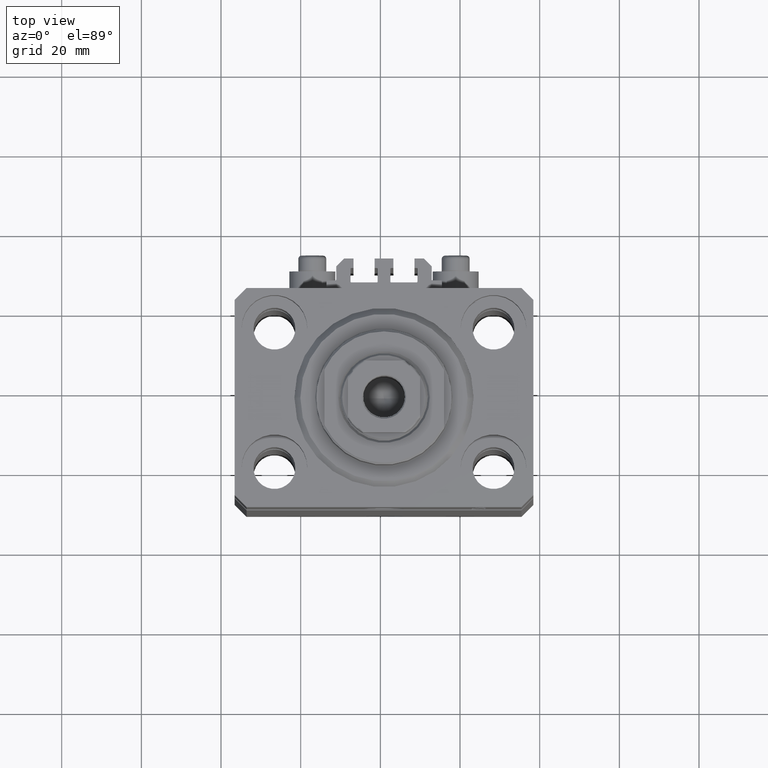
[diagram: clean part render]
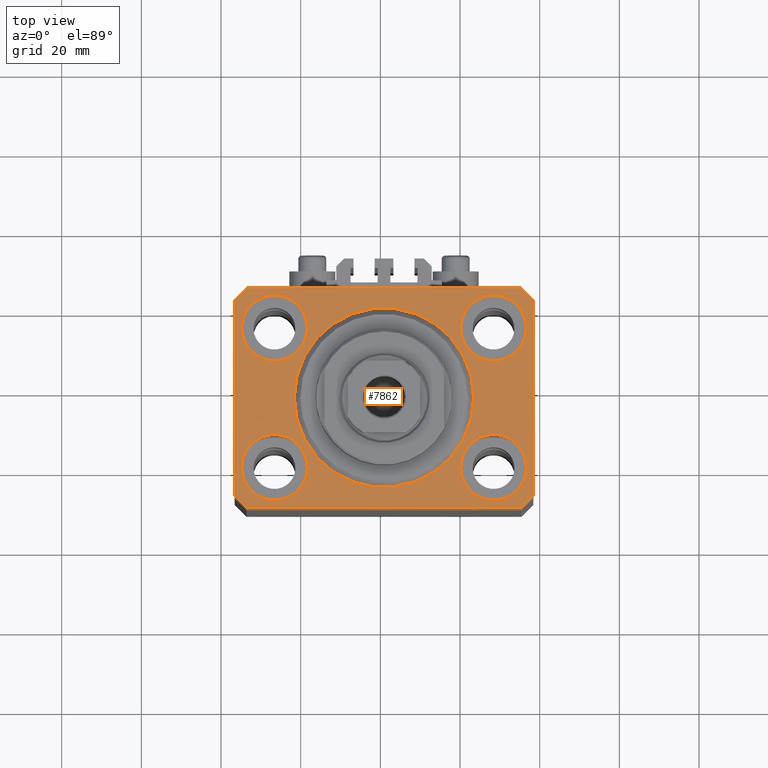
[diagram: same view with one face highlighted and labeled with its STEP entity id]
A machine part, top view. The second image highlights one B-rep face of the part: STEP entity #7862.
In plain terms, the highlighted planar face has unit normal (0, 0, 1).
Its self-contained STEP definition (entity closure, byte-faithful):
#115 = CARTESIAN_POINT ( 'NONE',  ( 27.49999999999999645, 17.50000000000001066, 0.000000000000000000 ) ) ;
#203 = VECTOR ( 'NONE', #7647, 1000.000000000000000 ) ;
#551 = PLANE ( 'NONE',  #45839 ) ;
#976 = EDGE_CURVE ( 'NONE', #36714, #23413, #38731, .T. ) ;
#1295 = VECTOR ( 'NONE', #18978, 1000.000000000000114 ) ;
#1832 = DIRECTION ( 'NONE',  ( 0.000000000000000000, 0.000000000000000000, 1.000000000000000000 ) ) ;
#2538 = CIRCLE ( 'NONE', #34297, 8.250000000000000000 ) ;
#2849 = AXIS2_PLACEMENT_3D ( 'NONE', #35001, #34774, #20570 ) ;
#3582 = VECTOR ( 'NONE', #10931, 1000.000000000000000 ) ;
#3684 = CARTESIAN_POINT ( 'NONE',  ( -35.75000000000000711, -17.50000000000000000, 0.000000000000000000 ) ) ;
#4534 = LINE ( 'NONE', #44527, #1295 ) ;
#4682 = DIRECTION ( 'NONE',  ( 1.000000000000000000, 0.000000000000000000, 0.000000000000000000 ) ) ;
#5132 = EDGE_CURVE ( 'NONE', #37843, #25739, #17060, .T. ) ;
#5859 = ORIENTED_EDGE ( 'NONE', *, *, #5132, .F. ) ;
#5908 = EDGE_CURVE ( 'NONE', #45989, #24899, #42020, .T. ) ;
#6667 = VECTOR ( 'NONE', #45756, 1000.000000000000114 ) ;
#6879 = CARTESIAN_POINT ( 'NONE',  ( 37.49999999999999289, -24.50000000000000000, 0.000000000000000000 ) ) ;
#6985 = DIRECTION ( 'NONE',  ( 0.000000000000000000, -1.000000000000000000, 0.000000000000000000 ) ) ;
#7214 = EDGE_CURVE ( 'NONE', #12616, #45944, #30733, .T. ) ;
#7410 = ORIENTED_EDGE ( 'NONE', *, *, #25615, .T. ) ;
#7599 = CIRCLE ( 'NONE', #16746, 8.250000000000000000 ) ;
#7647 = DIRECTION ( 'NONE',  ( 0.7071067811865483499, -0.7071067811865466846, 0.000000000000000000 ) ) ;
#7862 = ADVANCED_FACE ( 'NONE', ( #46735, #10973, #43171, #11440, #36544, #32968 ), #551, .T. ) ;
#8225 = CARTESIAN_POINT ( 'NONE',  ( -27.50000000000000355, -17.50000000000000000, 0.000000000000000000 ) ) ;
#8698 = VERTEX_POINT ( 'NONE', #41383 ) ;
#10266 = DIRECTION ( 'NONE',  ( 0.000000000000000000, 0.000000000000000000, 1.000000000000000000 ) ) ;
#10310 = CARTESIAN_POINT ( 'NONE',  ( -37.49999999999999289, 24.50000000000000000, 0.000000000000000000 ) ) ;
#10620 = CARTESIAN_POINT ( 'NONE',  ( -34.49999999999998579, -27.49999999999999645, 0.000000000000000000 ) ) ;
#10901 = ORIENTED_EDGE ( 'NONE', *, *, #29933, .F. ) ;
#10931 = DIRECTION ( 'NONE',  ( -1.000000000000000000, 0.000000000000000000, 0.000000000000000000 ) ) ;
#10973 = FACE_BOUND ( 'NONE', #12757, .T. ) ;
#11279 = EDGE_LOOP ( 'NONE', ( #5859, #15117 ) ) ;
#11373 = DIRECTION ( 'NONE',  ( 1.000000000000000000, 0.000000000000000000, 0.000000000000000000 ) ) ;
#11440 = FACE_BOUND ( 'NONE', #11279, .T. ) ;
#12042 = CARTESIAN_POINT ( 'NONE',  ( -27.50000000000000355, 17.50000000000000000, 0.000000000000000000 ) ) ;
#12376 = EDGE_CURVE ( 'NONE', #19516, #26536, #4534, .T. ) ;
#12616 = VERTEX_POINT ( 'NONE', #29809 ) ;
#12728 = CARTESIAN_POINT ( 'NONE',  ( -22.50000000000000355, 2.755455298081544383E-15, 0.000000000000000000 ) ) ;
#12757 = EDGE_LOOP ( 'NONE', ( #39554, #36873 ) ) ;
#12869 = CARTESIAN_POINT ( 'NONE',  ( 37.50000000000051870, 24.49999999999995381, 0.000000000000000000 ) ) ;
#12911 = EDGE_CURVE ( 'NONE', #8698, #36714, #18567, .T. ) ;
#13137 = VECTOR ( 'NONE', #6985, 1000.000000000000000 ) ;
#13431 = AXIS2_PLACEMENT_3D ( 'NONE', #36748, #33649, #33883 ) ;
#14270 = EDGE_CURVE ( 'NONE', #36044, #23907, #23266, .T. ) ;
#14302 = CARTESIAN_POINT ( 'NONE',  ( 0.000000000000000000, 0.000000000000000000, 0.000000000000000000 ) ) ;
#14924 = DIRECTION ( 'NONE',  ( 0.000000000000000000, 0.000000000000000000, 1.000000000000000000 ) ) ;
#15117 = ORIENTED_EDGE ( 'NONE', *, *, #22032, .F. ) ;
#15473 = CARTESIAN_POINT ( 'NONE',  ( -37.49999999999999289, -24.50000000000000000, 0.000000000000000000 ) ) ;
#15783 = EDGE_LOOP ( 'NONE', ( #7410, #22698, #25391, #23412, #36002, #18281, #17313, #25532 ) ) ;
#15914 = CARTESIAN_POINT ( 'NONE',  ( -19.25000000000000355, 17.50000000000000000, 0.000000000000000000 ) ) ;
#16617 = DIRECTION ( 'NONE',  ( 0.000000000000000000, 0.000000000000000000, 1.000000000000000000 ) ) ;
#16729 = EDGE_LOOP ( 'NONE', ( #24344, #30030 ) ) ;
#16746 = AXIS2_PLACEMENT_3D ( 'NONE', #44031, #14924, #11373 ) ;
#17060 = CIRCLE ( 'NONE', #29895, 8.250000000000000000 ) ;
#17273 = LINE ( 'NONE', #10620, #25692 ) ;
#17313 = ORIENTED_EDGE ( 'NONE', *, *, #38613, .T. ) ;
#17477 = CARTESIAN_POINT ( 'NONE',  ( -19.25000000000000355, -17.50000000000000000, 0.000000000000000000 ) ) ;
#17729 = CARTESIAN_POINT ( 'NONE',  ( -34.49999999999998579, -27.49999999999999645, 0.000000000000000000 ) ) ;
#17830 = AXIS2_PLACEMENT_3D ( 'NONE', #42701, #10266, #24718 ) ;
#18281 = ORIENTED_EDGE ( 'NONE', *, *, #12376, .T. ) ;
#18567 = LINE ( 'NONE', #26380, #20968 ) ;
#18837 = AXIS2_PLACEMENT_3D ( 'NONE', #38856, #16617, #20867 ) ;
#18905 = VERTEX_POINT ( 'NONE', #41415 ) ;
#18978 = DIRECTION ( 'NONE',  ( 0.7071067811865474617, 0.7071067811865474617, 0.000000000000000000 ) ) ;
#19022 = LINE ( 'NONE', #15473, #203 ) ;
#19276 = DIRECTION ( 'NONE',  ( -0.7071067811865471286, -0.7071067811865479058, 0.000000000000000000 ) ) ;
#19516 = VERTEX_POINT ( 'NONE', #41544 ) ;
#20084 = VERTEX_POINT ( 'NONE', #12728 ) ;
#20129 = CARTESIAN_POINT ( 'NONE',  ( 34.50000000000056843, 27.50000000000000000, 0.000000000000000000 ) ) ;
#20327 = AXIS2_PLACEMENT_3D ( 'NONE', #115, #21885, #35402 ) ;
#20570 = DIRECTION ( 'NONE',  ( 1.000000000000000000, 0.000000000000000000, 0.000000000000000000 ) ) ;
#20594 = DIRECTION ( 'NONE',  ( 0.000000000000000000, 0.000000000000000000, 1.000000000000000000 ) ) ;
#20867 = DIRECTION ( 'NONE',  ( 1.000000000000000000, 0.000000000000000000, 0.000000000000000000 ) ) ;
#20968 = VECTOR ( 'NONE', #19276, 1000.000000000000000 ) ;
#21064 = VERTEX_POINT ( 'NONE', #29743 ) ;
#21863 = DIRECTION ( 'NONE',  ( 0.000000000000000000, 0.000000000000000000, 1.000000000000000000 ) ) ;
#21885 = DIRECTION ( 'NONE',  ( 0.000000000000000000, 0.000000000000000000, 1.000000000000000000 ) ) ;
#22032 = EDGE_CURVE ( 'NONE', #25739, #37843, #7599, .T. ) ;
#22127 = CARTESIAN_POINT ( 'NONE',  ( 27.50000000000000355, -17.50000000000000000, 0.000000000000000000 ) ) ;
#22698 = ORIENTED_EDGE ( 'NONE', *, *, #12911, .T. ) ;
#22971 = VERTEX_POINT ( 'NONE', #20129 ) ;
#23266 = CIRCLE ( 'NONE', #2849, 8.250000000000000000 ) ;
#23412 = ORIENTED_EDGE ( 'NONE', *, *, #41530, .T. ) ;
#23413 = VERTEX_POINT ( 'NONE', #32120 ) ;
#23646 = CARTESIAN_POINT ( 'NONE',  ( 19.25000000000000000, -17.50000000000000000, 0.000000000000000000 ) ) ;
#23907 = VERTEX_POINT ( 'NONE', #40802 ) ;
#24344 = ORIENTED_EDGE ( 'NONE', *, *, #45762, .F. ) ;
#24718 = DIRECTION ( 'NONE',  ( 1.000000000000000000, 0.000000000000000000, 0.000000000000000000 ) ) ;
#24899 = VERTEX_POINT ( 'NONE', #17477 ) ;
#25195 = DIRECTION ( 'NONE',  ( 1.000000000000000000, 0.000000000000000000, -0.000000000000000000 ) ) ;
#25391 = ORIENTED_EDGE ( 'NONE', *, *, #976, .T. ) ;
#25532 = ORIENTED_EDGE ( 'NONE', *, *, #27813, .T. ) ;
#25615 = EDGE_CURVE ( 'NONE', #22971, #8698, #28247, .T. ) ;
#25692 = VECTOR ( 'NONE', #31234, 1000.000000000000000 ) ;
#25739 = VERTEX_POINT ( 'NONE', #45002 ) ;
#26253 = DIRECTION ( 'NONE',  ( 0.000000000000000000, 0.000000000000000000, 1.000000000000000000 ) ) ;
#26366 = EDGE_CURVE ( 'NONE', #21064, #20084, #30057, .T. ) ;
#26380 = CARTESIAN_POINT ( 'NONE',  ( -34.49999999999999289, 27.50000000000000000, 0.000000000000000000 ) ) ;
#26536 = VERTEX_POINT ( 'NONE', #28203 ) ;
#27813 = EDGE_CURVE ( 'NONE', #18905, #22971, #38201, .T. ) ;
#27936 = CARTESIAN_POINT ( 'NONE',  ( 27.49999999999999645, 17.50000000000001066, 0.000000000000000000 ) ) ;
#28203 = CARTESIAN_POINT ( 'NONE',  ( 37.49999999999999289, -24.50000000000000000, 0.000000000000000000 ) ) ;
#28247 = LINE ( 'NONE', #28931, #3582 ) ;
#28533 = EDGE_CURVE ( 'NONE', #45944, #12616, #35433, .T. ) ;
#28931 = CARTESIAN_POINT ( 'NONE',  ( 34.50000000000056843, 27.50000000000000000, 0.000000000000000000 ) ) ;
#29707 = EDGE_LOOP ( 'NONE', ( #31103, #40910 ) ) ;
#29743 = CARTESIAN_POINT ( 'NONE',  ( 22.50000000000000355, 0.000000000000000000, 0.000000000000000000 ) ) ;
#29809 = CARTESIAN_POINT ( 'NONE',  ( 19.25000000000000000, 17.50000000000001066, 0.000000000000000000 ) ) ;
#29895 = AXIS2_PLACEMENT_3D ( 'NONE', #12042, #26253, #37610 ) ;
#29933 = EDGE_CURVE ( 'NONE', #20084, #21064, #41510, .T. ) ;
#30030 = ORIENTED_EDGE ( 'NONE', *, *, #5908, .F. ) ;
#30057 = CIRCLE ( 'NONE', #13431, 22.50000000000000355 ) ;
#30733 = CIRCLE ( 'NONE', #32974, 8.249999999999992895 ) ;
#31103 = ORIENTED_EDGE ( 'NONE', *, *, #28533, .F. ) ;
#31234 = DIRECTION ( 'NONE',  ( 1.000000000000000000, 0.000000000000000000, 0.000000000000000000 ) ) ;
#31314 = VERTEX_POINT ( 'NONE', #17729 ) ;
#32120 = CARTESIAN_POINT ( 'NONE',  ( -37.49999999999999289, -24.50000000000000000, 0.000000000000000000 ) ) ;
#32171 = DIRECTION ( 'NONE',  ( 1.000000000000000000, 0.000000000000000000, 0.000000000000000000 ) ) ;
#32434 = LINE ( 'NONE', #6879, #32598 ) ;
#32598 = VECTOR ( 'NONE', #32659, 1000.000000000000000 ) ;
#32659 = DIRECTION ( 'NONE',  ( 1.076236605503979380E-14, 1.000000000000000000, 0.000000000000000000 ) ) ;
#32968 = FACE_OUTER_BOUND ( 'NONE', #15783, .T. ) ;
#32974 = AXIS2_PLACEMENT_3D ( 'NONE', #27936, #20594, #32171 ) ;
#32998 = DIRECTION ( 'NONE',  ( 0.000000000000000000, 0.000000000000000000, 1.000000000000000000 ) ) ;
#33363 = CARTESIAN_POINT ( 'NONE',  ( -37.49999999999999289, 24.50000000000000000, 0.000000000000000000 ) ) ;
#33481 = CIRCLE ( 'NONE', #40274, 8.250000000000000000 ) ;
#33649 = DIRECTION ( 'NONE',  ( 0.000000000000000000, 0.000000000000000000, 1.000000000000000000 ) ) ;
#33883 = DIRECTION ( 'NONE',  ( 1.000000000000000000, 0.000000000000000000, 0.000000000000000000 ) ) ;
#33954 = EDGE_LOOP ( 'NONE', ( #43369, #10901 ) ) ;
#34297 = AXIS2_PLACEMENT_3D ( 'NONE', #22127, #32998, #40586 ) ;
#34774 = DIRECTION ( 'NONE',  ( 0.000000000000000000, 0.000000000000000000, 1.000000000000000000 ) ) ;
#35001 = CARTESIAN_POINT ( 'NONE',  ( 27.50000000000000355, -17.50000000000000000, 0.000000000000000000 ) ) ;
#35190 = EDGE_CURVE ( 'NONE', #31314, #19516, #17273, .T. ) ;
#35402 = DIRECTION ( 'NONE',  ( 1.000000000000000000, 0.000000000000000000, 0.000000000000000000 ) ) ;
#35433 = CIRCLE ( 'NONE', #20327, 8.249999999999992895 ) ;
#36002 = ORIENTED_EDGE ( 'NONE', *, *, #35190, .T. ) ;
#36044 = VERTEX_POINT ( 'NONE', #23646 ) ;
#36544 = FACE_BOUND ( 'NONE', #33954, .T. ) ;
#36714 = VERTEX_POINT ( 'NONE', #33363 ) ;
#36748 = CARTESIAN_POINT ( 'NONE',  ( 0.000000000000000000, 0.000000000000000000, 0.000000000000000000 ) ) ;
#36873 = ORIENTED_EDGE ( 'NONE', *, *, #14270, .F. ) ;
#37610 = DIRECTION ( 'NONE',  ( 1.000000000000000000, 0.000000000000000000, 0.000000000000000000 ) ) ;
#37843 = VERTEX_POINT ( 'NONE', #15914 ) ;
#38201 = LINE ( 'NONE', #12869, #6667 ) ;
#38613 = EDGE_CURVE ( 'NONE', #26536, #18905, #32434, .T. ) ;
#38731 = LINE ( 'NONE', #10310, #13137 ) ;
#38856 = CARTESIAN_POINT ( 'NONE',  ( 0.000000000000000000, 0.000000000000000000, 0.000000000000000000 ) ) ;
#39554 = ORIENTED_EDGE ( 'NONE', *, *, #43959, .F. ) ;
#40274 = AXIS2_PLACEMENT_3D ( 'NONE', #8225, #1832, #4682 ) ;
#40376 = CARTESIAN_POINT ( 'NONE',  ( 35.74999999999999289, 17.50000000000001066, 0.000000000000000000 ) ) ;
#40586 = DIRECTION ( 'NONE',  ( 1.000000000000000000, 0.000000000000000000, 0.000000000000000000 ) ) ;
#40802 = CARTESIAN_POINT ( 'NONE',  ( 35.75000000000000711, -17.50000000000000000, 0.000000000000000000 ) ) ;
#40910 = ORIENTED_EDGE ( 'NONE', *, *, #7214, .F. ) ;
#41383 = CARTESIAN_POINT ( 'NONE',  ( -34.49999999999999289, 27.50000000000000000, 0.000000000000000000 ) ) ;
#41415 = CARTESIAN_POINT ( 'NONE',  ( 37.50000000000051870, 24.49999999999995381, 0.000000000000000000 ) ) ;
#41510 = CIRCLE ( 'NONE', #18837, 22.50000000000000355 ) ;
#41530 = EDGE_CURVE ( 'NONE', #23413, #31314, #19022, .T. ) ;
#41544 = CARTESIAN_POINT ( 'NONE',  ( 34.49999999999999289, -27.49999999999999645, 0.000000000000000000 ) ) ;
#42020 = CIRCLE ( 'NONE', #17830, 8.250000000000000000 ) ;
#42701 = CARTESIAN_POINT ( 'NONE',  ( -27.50000000000000355, -17.50000000000000000, 0.000000000000000000 ) ) ;
#43171 = FACE_BOUND ( 'NONE', #29707, .T. ) ;
#43369 = ORIENTED_EDGE ( 'NONE', *, *, #26366, .F. ) ;
#43959 = EDGE_CURVE ( 'NONE', #23907, #36044, #2538, .T. ) ;
#44031 = CARTESIAN_POINT ( 'NONE',  ( -27.50000000000000355, 17.50000000000000000, 0.000000000000000000 ) ) ;
#44527 = CARTESIAN_POINT ( 'NONE',  ( 34.49999999999999289, -27.49999999999999645, 0.000000000000000000 ) ) ;
#45002 = CARTESIAN_POINT ( 'NONE',  ( -35.75000000000000711, 17.50000000000000000, 0.000000000000000000 ) ) ;
#45756 = DIRECTION ( 'NONE',  ( -0.7071067811865356934, 0.7071067811865594521, 0.000000000000000000 ) ) ;
#45762 = EDGE_CURVE ( 'NONE', #24899, #45989, #33481, .T. ) ;
#45839 = AXIS2_PLACEMENT_3D ( 'NONE', #14302, #21863, #25195 ) ;
#45944 = VERTEX_POINT ( 'NONE', #40376 ) ;
#45989 = VERTEX_POINT ( 'NONE', #3684 ) ;
#46735 = FACE_BOUND ( 'NONE', #16729, .T. ) ;